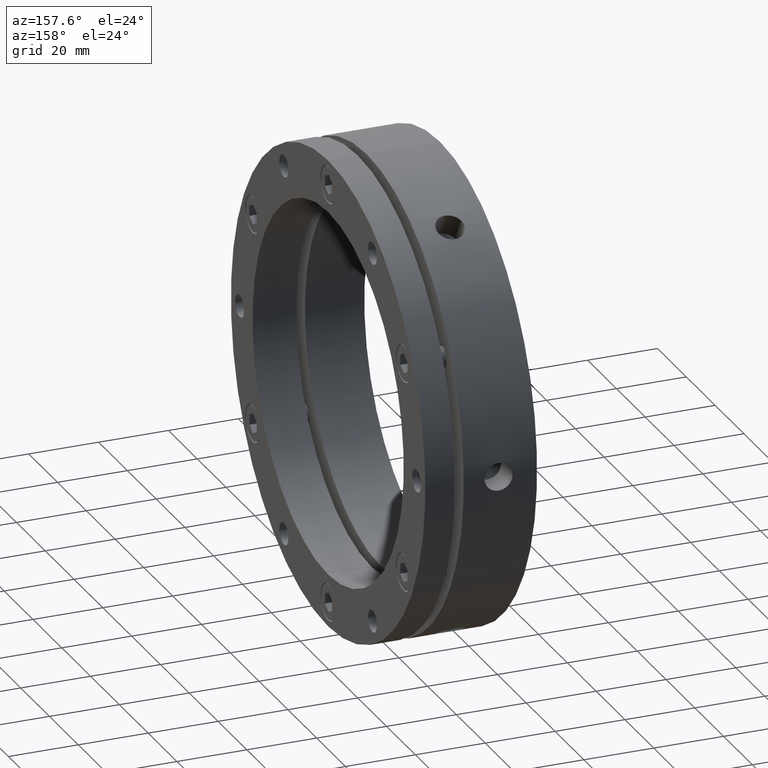
[diagram: clean part render]
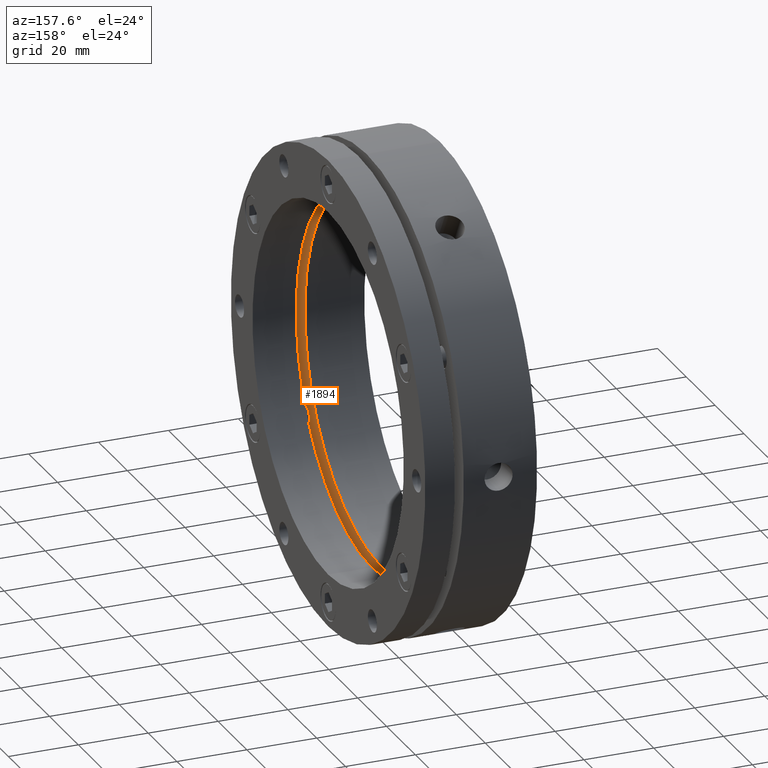
[diagram: same view with one face highlighted and labeled with its STEP entity id]
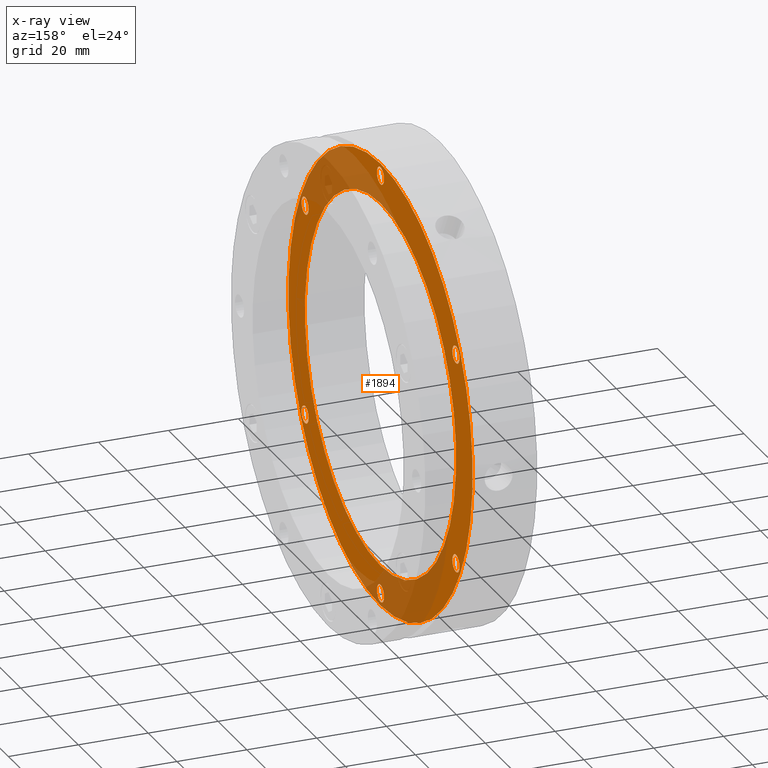
[diagram: x-ray of the same camera — body ghosted, the highlighted face saturated]
A machine part, auxiliary view. The second image highlights one B-rep face of the part: STEP entity #1894.
The next image is the same camera in x-ray: the body ghosted, the highlighted face saturated — about 28% of this face is hidden behind the body in this view.
In plain terms, the highlighted planar face has unit normal (-1, 0, 0).
Its self-contained STEP definition (entity closure, byte-faithful):
#407 = CIRCLE ( 'NONE', #522, 52.50000000000000000 ) ;
#425 = CIRCLE ( 'NONE', #526, 2.458499999999999000 ) ;
#453 = CIRCLE ( 'NONE', #534, 2.458499999999999000 ) ;
#457 = CIRCLE ( 'NONE', #542, 2.458499999999995500 ) ;
#507 = AXIS2_PLACEMENT_3D ( 'NONE', #3823, #3824, #3825 ) ;
#511 = AXIS2_PLACEMENT_3D ( 'NONE', #3795, #3796, #3797 ) ;
#513 = AXIS2_PLACEMENT_3D ( 'NONE', #3785, #3786, #3787 ) ;
#517 = AXIS2_PLACEMENT_3D ( 'NONE', #3749, #3750, #3751 ) ;
#522 = AXIS2_PLACEMENT_3D ( 'NONE', #3719, #3720, #3721 ) ;
#526 = AXIS2_PLACEMENT_3D ( 'NONE', #3692, #3693, #3694 ) ;
#534 = AXIS2_PLACEMENT_3D ( 'NONE', #3342, #3343, #3344 ) ;
#542 = AXIS2_PLACEMENT_3D ( 'NONE', #3334, #3335, #3336 ) ;
#548 = EDGE_CURVE ( 'NONE', #2092, #2098, #1250, .T. ) ;
#621 = EDGE_CURVE ( 'NONE', #2076, #2079, #1200, .T. ) ;
#622 = EDGE_CURVE ( 'NONE', #2093, #2094, #1196, .T. ) ;
#645 = EDGE_CURVE ( 'NONE', #2080, #2083, #1160, .T. ) ;
#751 = AXIS2_PLACEMENT_3D ( 'NONE', #2946, #2944, #2950 ) ;
#1001 = EDGE_CURVE ( 'NONE', #2088, #2091, #4500, .T. ) ;
#1010 = EDGE_CURVE ( 'NONE', #2030, #2031, #4492, .T. ) ;
#1014 = EDGE_CURVE ( 'NONE', #2072, #2075, #4488, .T. ) ;
#1030 = EDGE_CURVE ( 'NONE', #2084, #2087, #4473, .T. ) ;
#1160 = CIRCLE ( 'NONE', #2745, 2.458500000000002600 ) ;
#1196 = CIRCLE ( 'NONE', #4314, 52.50000000000000000 ) ;
#1200 = CIRCLE ( 'NONE', #4315, 2.458499999999999000 ) ;
#1250 = CIRCLE ( 'NONE', #4346, 2.458499999999995500 ) ;
#1301 = DIRECTION ( 'NONE',  ( -1.000000000000000000, 0.0000000000000000000, 0.0000000000000000000 ) ) ;
#1302 = DIRECTION ( 'NONE',  ( 0.0000000000000000000, 0.0000000000000000000, 1.000000000000000000 ) ) ;
#1303 = CARTESIAN_POINT ( 'NONE',  ( 17.00000000000000700, 0.0000000000000000000, 60.50000000000003600 ) ) ;
#1451 = CARTESIAN_POINT ( 'NONE',  ( 17.00000000000000700, 52.39453692895854400, -30.25000000000004300 ) ) ;
#1452 = DIRECTION ( 'NONE',  ( -1.000000000000000000, 0.0000000000000000000, 0.0000000000000000000 ) ) ;
#1453 = DIRECTION ( 'NONE',  ( 0.0000000000000000000, 0.0000000000000000000, 1.000000000000000000 ) ) ;
#1455 = CARTESIAN_POINT ( 'NONE',  ( 17.00000000000000700, 0.0000000000000000000, 0.0000000000000000000 ) ) ;
#1456 = DIRECTION ( 'NONE',  ( -1.000000000000000000, -0.0000000000000000000, -0.0000000000000000000 ) ) ;
#1457 = DIRECTION ( 'NONE',  ( 0.0000000000000000000, 0.0000000000000000000, -1.000000000000000000 ) ) ;
#1514 = CARTESIAN_POINT ( 'NONE',  ( 17.00000000000000700, -8.881783999999999800E-015, -60.50000000000004300 ) ) ;
#1515 = DIRECTION ( 'NONE',  ( -1.000000000000000000, 0.0000000000000000000, 0.0000000000000000000 ) ) ;
#1516 = DIRECTION ( 'NONE',  ( 0.0000000000000000000, 0.0000000000000000000, 1.000000000000000000 ) ) ;
#1614 = CARTESIAN_POINT ( 'NONE',  ( 17.00000000000000700, -52.39453692895855900, 30.25000000000002500 ) ) ;
#1615 = DIRECTION ( 'NONE',  ( -1.000000000000000000, 0.0000000000000000000, 0.0000000000000000000 ) ) ;
#1616 = DIRECTION ( 'NONE',  ( 0.0000000000000000000, 0.0000000000000000000, 1.000000000000000000 ) ) ;
#1672 = CARTESIAN_POINT ( 'NONE',  ( 16.99999999999999300, 0.0000000000000000000, 0.0000000000000000000 ) ) ;
#1673 = DIRECTION ( 'NONE',  ( -1.000000000000000000, 0.0000000000000000000, 0.0000000000000000000 ) ) ;
#1674 = DIRECTION ( 'NONE',  ( 0.0000000000000000000, 0.0000000000000000000, 1.000000000000000000 ) ) ;
#1682 = CARTESIAN_POINT ( 'NONE',  ( 17.00000000000000700, 52.39453692895858700, 30.24999999999997900 ) ) ;
#1683 = DIRECTION ( 'NONE',  ( -1.000000000000000000, 0.0000000000000000000, 0.0000000000000000000 ) ) ;
#1684 = DIRECTION ( 'NONE',  ( 0.0000000000000000000, 0.0000000000000000000, 1.000000000000000000 ) ) ;
#1763 = CARTESIAN_POINT ( 'NONE',  ( 17.00000000000000700, -52.39453692895857300, -30.25000000000000000 ) ) ;
#1764 = DIRECTION ( 'NONE',  ( -1.000000000000000000, 0.0000000000000000000, 0.0000000000000000000 ) ) ;
#1765 = DIRECTION ( 'NONE',  ( 0.0000000000000000000, 0.0000000000000000000, 1.000000000000000000 ) ) ;
#1894 = ADVANCED_FACE ( 'NONE', ( #4216, #4212, #4215, #4213, #4214, #4211, #4210, #4209 ), #2948, .F. ) ;
#2030 = VERTEX_POINT ( 'NONE', #3200 ) ;
#2031 = VERTEX_POINT ( 'NONE', #3201 ) ;
#2072 = VERTEX_POINT ( 'NONE', #3242 ) ;
#2075 = VERTEX_POINT ( 'NONE', #3245 ) ;
#2076 = VERTEX_POINT ( 'NONE', #3246 ) ;
#2079 = VERTEX_POINT ( 'NONE', #3249 ) ;
#2080 = VERTEX_POINT ( 'NONE', #3250 ) ;
#2083 = VERTEX_POINT ( 'NONE', #3253 ) ;
#2084 = VERTEX_POINT ( 'NONE', #3254 ) ;
#2087 = VERTEX_POINT ( 'NONE', #3257 ) ;
#2088 = VERTEX_POINT ( 'NONE', #3258 ) ;
#2091 = VERTEX_POINT ( 'NONE', #3261 ) ;
#2092 = VERTEX_POINT ( 'NONE', #3262 ) ;
#2093 = VERTEX_POINT ( 'NONE', #3263 ) ;
#2094 = VERTEX_POINT ( 'NONE', #3264 ) ;
#2098 = VERTEX_POINT ( 'NONE', #3268 ) ;
#2190 = EDGE_LOOP ( 'NONE', ( #2353, #2352 ) ) ;
#2191 = EDGE_LOOP ( 'NONE', ( #2360, #2359 ) ) ;
#2192 = EDGE_LOOP ( 'NONE', ( #2356, #2355 ) ) ;
#2193 = EDGE_LOOP ( 'NONE', ( #2369, #2368 ) ) ;
#2194 = EDGE_LOOP ( 'NONE', ( #2362, #2361 ) ) ;
#2195 = EDGE_LOOP ( 'NONE', ( #2366, #2365 ) ) ;
#2196 = EDGE_LOOP ( 'NONE', ( #2358, #2357 ) ) ;
#2200 = EDGE_LOOP ( 'NONE', ( #2364, #2363 ) ) ;
#2225 = CIRCLE ( 'NONE', #507, 64.00000000000000000 ) ;
#2246 = CIRCLE ( 'NONE', #511, 2.458499999999999000 ) ;
#2255 = CIRCLE ( 'NONE', #513, 2.458500000000002600 ) ;
#2282 = CIRCLE ( 'NONE', #517, 2.458500000000002600 ) ;
#2352 = ORIENTED_EDGE ( 'NONE', *, *, #4553, .F. ) ;
#2353 = ORIENTED_EDGE ( 'NONE', *, *, #1010, .F. ) ;
#2355 = ORIENTED_EDGE ( 'NONE', *, *, #4537, .T. ) ;
#2356 = ORIENTED_EDGE ( 'NONE', *, *, #1014, .T. ) ;
#2357 = ORIENTED_EDGE ( 'NONE', *, *, #4540, .T. ) ;
#2358 = ORIENTED_EDGE ( 'NONE', *, *, #621, .T. ) ;
#2359 = ORIENTED_EDGE ( 'NONE', *, *, #4520, .T. ) ;
#2360 = ORIENTED_EDGE ( 'NONE', *, *, #645, .T. ) ;
#2361 = ORIENTED_EDGE ( 'NONE', *, *, #4265, .T. ) ;
#2362 = ORIENTED_EDGE ( 'NONE', *, *, #1030, .T. ) ;
#2363 = ORIENTED_EDGE ( 'NONE', *, *, #4292, .T. ) ;
#2364 = ORIENTED_EDGE ( 'NONE', *, *, #1001, .T. ) ;
#2365 = ORIENTED_EDGE ( 'NONE', *, *, #4262, .T. ) ;
#2366 = ORIENTED_EDGE ( 'NONE', *, *, #548, .T. ) ;
#2368 = ORIENTED_EDGE ( 'NONE', *, *, #622, .T. ) ;
#2369 = ORIENTED_EDGE ( 'NONE', *, *, #4303, .T. ) ;
#2699 = AXIS2_PLACEMENT_3D ( 'NONE', #1763, #1764, #1765 ) ;
#2714 = AXIS2_PLACEMENT_3D ( 'NONE', #1682, #1683, #1684 ) ;
#2717 = AXIS2_PLACEMENT_3D ( 'NONE', #1672, #1673, #1674 ) ;
#2725 = AXIS2_PLACEMENT_3D ( 'NONE', #1614, #1615, #1616 ) ;
#2745 = AXIS2_PLACEMENT_3D ( 'NONE', #1514, #1515, #1516 ) ;
#2944 = DIRECTION ( 'NONE',  ( -1.000000000000000000, 0.0000000000000000000, 0.0000000000000000000 ) ) ;
#2946 = CARTESIAN_POINT ( 'NONE',  ( 17.00000000000000700, 32.00000000000000000, 0.0000000000000000000 ) ) ;
#2948 = PLANE ( 'NONE',  #751 ) ;
#2950 = DIRECTION ( 'NONE',  ( 0.0000000000000000000, 0.0000000000000000000, 1.000000000000000000 ) ) ;
#3200 = CARTESIAN_POINT ( 'NONE',  ( 16.99999999999999300, 0.0000000000000000000, 64.00000000000000000 ) ) ;
#3201 = CARTESIAN_POINT ( 'NONE',  ( 16.99999999999999300, 7.837739514543060500E-015, -64.00000000000000000 ) ) ;
#3242 = CARTESIAN_POINT ( 'NONE',  ( 17.00000000000000700, 52.39453692895858700, 32.70849999999997900 ) ) ;
#3245 = CARTESIAN_POINT ( 'NONE',  ( 17.00000000000000700, 52.39453692895858700, 27.79149999999997400 ) ) ;
#3246 = CARTESIAN_POINT ( 'NONE',  ( 17.00000000000000700, 52.39453692895854400, -27.79150000000004500 ) ) ;
#3249 = CARTESIAN_POINT ( 'NONE',  ( 17.00000000000000700, 52.39453692895854400, -32.70850000000004300 ) ) ;
#3250 = CARTESIAN_POINT ( 'NONE',  ( 17.00000000000000700, -8.881783999999999800E-015, -58.04150000000003500 ) ) ;
#3253 = CARTESIAN_POINT ( 'NONE',  ( 17.00000000000000700, -8.580704584429623500E-015, -62.95850000000004300 ) ) ;
#3254 = CARTESIAN_POINT ( 'NONE',  ( 17.00000000000000700, -52.39453692895857300, -27.79149999999999900 ) ) ;
#3257 = CARTESIAN_POINT ( 'NONE',  ( 17.00000000000000700, -52.39453692895857300, -32.70850000000000100 ) ) ;
#3258 = CARTESIAN_POINT ( 'NONE',  ( 17.00000000000000700, -52.39453692895855900, 32.70850000000002200 ) ) ;
#3261 = CARTESIAN_POINT ( 'NONE',  ( 17.00000000000000700, -52.39453692895855900, 27.79150000000002400 ) ) ;
#3262 = CARTESIAN_POINT ( 'NONE',  ( 17.00000000000000700, 0.0000000000000000000, 62.95850000000002900 ) ) ;
#3263 = CARTESIAN_POINT ( 'NONE',  ( 17.00000000000000700, 6.429395695523604000E-015, 52.50000000000000000 ) ) ;
#3264 = CARTESIAN_POINT ( 'NONE',  ( 17.00000000000000700, 0.0000000000000000000, -52.50000000000000000 ) ) ;
#3268 = CARTESIAN_POINT ( 'NONE',  ( 17.00000000000000700, 3.010794155703764200E-016, 58.04150000000002800 ) ) ;
#3334 = CARTESIAN_POINT ( 'NONE',  ( 17.00000000000000700, 0.0000000000000000000, 60.50000000000003600 ) ) ;
#3335 = DIRECTION ( 'NONE',  ( -1.000000000000000000, 0.0000000000000000000, 0.0000000000000000000 ) ) ;
#3336 = DIRECTION ( 'NONE',  ( 0.0000000000000000000, 0.0000000000000000000, 1.000000000000000000 ) ) ;
#3342 = CARTESIAN_POINT ( 'NONE',  ( 17.00000000000000700, -52.39453692895857300, -30.25000000000000000 ) ) ;
#3343 = DIRECTION ( 'NONE',  ( -1.000000000000000000, 0.0000000000000000000, 0.0000000000000000000 ) ) ;
#3344 = DIRECTION ( 'NONE',  ( 0.0000000000000000000, 0.0000000000000000000, 1.000000000000000000 ) ) ;
#3692 = CARTESIAN_POINT ( 'NONE',  ( 17.00000000000000700, -52.39453692895855900, 30.25000000000002500 ) ) ;
#3693 = DIRECTION ( 'NONE',  ( -1.000000000000000000, 0.0000000000000000000, 0.0000000000000000000 ) ) ;
#3694 = DIRECTION ( 'NONE',  ( 0.0000000000000000000, 0.0000000000000000000, 1.000000000000000000 ) ) ;
#3719 = CARTESIAN_POINT ( 'NONE',  ( 17.00000000000000700, 0.0000000000000000000, 0.0000000000000000000 ) ) ;
#3720 = DIRECTION ( 'NONE',  ( -1.000000000000000000, -0.0000000000000000000, -0.0000000000000000000 ) ) ;
#3721 = DIRECTION ( 'NONE',  ( 0.0000000000000000000, 0.0000000000000000000, -1.000000000000000000 ) ) ;
#3749 = CARTESIAN_POINT ( 'NONE',  ( 17.00000000000000700, -8.881783999999999800E-015, -60.50000000000004300 ) ) ;
#3750 = DIRECTION ( 'NONE',  ( -1.000000000000000000, 0.0000000000000000000, 0.0000000000000000000 ) ) ;
#3751 = DIRECTION ( 'NONE',  ( 0.0000000000000000000, 0.0000000000000000000, 1.000000000000000000 ) ) ;
#3785 = CARTESIAN_POINT ( 'NONE',  ( 17.00000000000000700, 52.39453692895858700, 30.24999999999997900 ) ) ;
#3786 = DIRECTION ( 'NONE',  ( -1.000000000000000000, 0.0000000000000000000, 0.0000000000000000000 ) ) ;
#3787 = DIRECTION ( 'NONE',  ( 0.0000000000000000000, 0.0000000000000000000, 1.000000000000000000 ) ) ;
#3795 = CARTESIAN_POINT ( 'NONE',  ( 17.00000000000000700, 52.39453692895854400, -30.25000000000004300 ) ) ;
#3796 = DIRECTION ( 'NONE',  ( -1.000000000000000000, 0.0000000000000000000, 0.0000000000000000000 ) ) ;
#3797 = DIRECTION ( 'NONE',  ( 0.0000000000000000000, 0.0000000000000000000, 1.000000000000000000 ) ) ;
#3823 = CARTESIAN_POINT ( 'NONE',  ( 16.99999999999999300, 0.0000000000000000000, 0.0000000000000000000 ) ) ;
#3824 = DIRECTION ( 'NONE',  ( -1.000000000000000000, 0.0000000000000000000, 0.0000000000000000000 ) ) ;
#3825 = DIRECTION ( 'NONE',  ( 0.0000000000000000000, 0.0000000000000000000, 1.000000000000000000 ) ) ;
#4209 = FACE_OUTER_BOUND ( 'NONE', #2190, .T. ) ;
#4210 = FACE_BOUND ( 'NONE', #2192, .T. ) ;
#4211 = FACE_BOUND ( 'NONE', #2196, .T. ) ;
#4212 = FACE_BOUND ( 'NONE', #2195, .T. ) ;
#4213 = FACE_BOUND ( 'NONE', #2194, .T. ) ;
#4214 = FACE_BOUND ( 'NONE', #2191, .T. ) ;
#4215 = FACE_BOUND ( 'NONE', #2200, .T. ) ;
#4216 = FACE_BOUND ( 'NONE', #2193, .T. ) ;
#4262 = EDGE_CURVE ( 'NONE', #2098, #2092, #457, .T. ) ;
#4265 = EDGE_CURVE ( 'NONE', #2087, #2084, #453, .T. ) ;
#4292 = EDGE_CURVE ( 'NONE', #2091, #2088, #425, .T. ) ;
#4303 = EDGE_CURVE ( 'NONE', #2094, #2093, #407, .T. ) ;
#4314 = AXIS2_PLACEMENT_3D ( 'NONE', #1455, #1456, #1457 ) ;
#4315 = AXIS2_PLACEMENT_3D ( 'NONE', #1451, #1452, #1453 ) ;
#4346 = AXIS2_PLACEMENT_3D ( 'NONE', #1303, #1301, #1302 ) ;
#4473 = CIRCLE ( 'NONE', #2699, 2.458499999999999000 ) ;
#4488 = CIRCLE ( 'NONE', #2714, 2.458500000000002600 ) ;
#4492 = CIRCLE ( 'NONE', #2717, 64.00000000000000000 ) ;
#4500 = CIRCLE ( 'NONE', #2725, 2.458499999999999000 ) ;
#4520 = EDGE_CURVE ( 'NONE', #2083, #2080, #2282, .T. ) ;
#4537 = EDGE_CURVE ( 'NONE', #2075, #2072, #2255, .T. ) ;
#4540 = EDGE_CURVE ( 'NONE', #2079, #2076, #2246, .T. ) ;
#4553 = EDGE_CURVE ( 'NONE', #2031, #2030, #2225, .T. ) ;